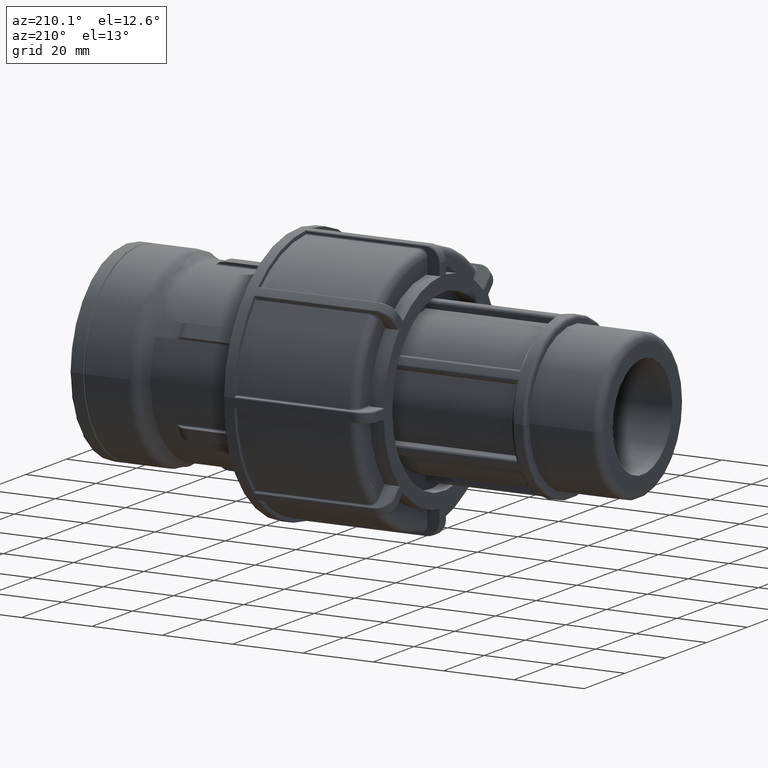
[diagram: clean part render]
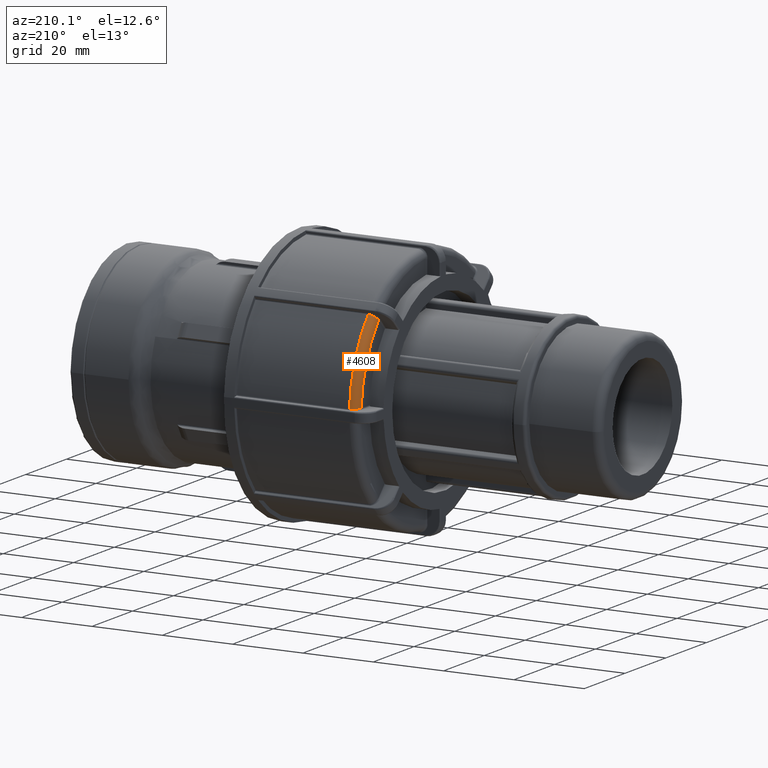
[diagram: same view with one face highlighted and labeled with its STEP entity id]
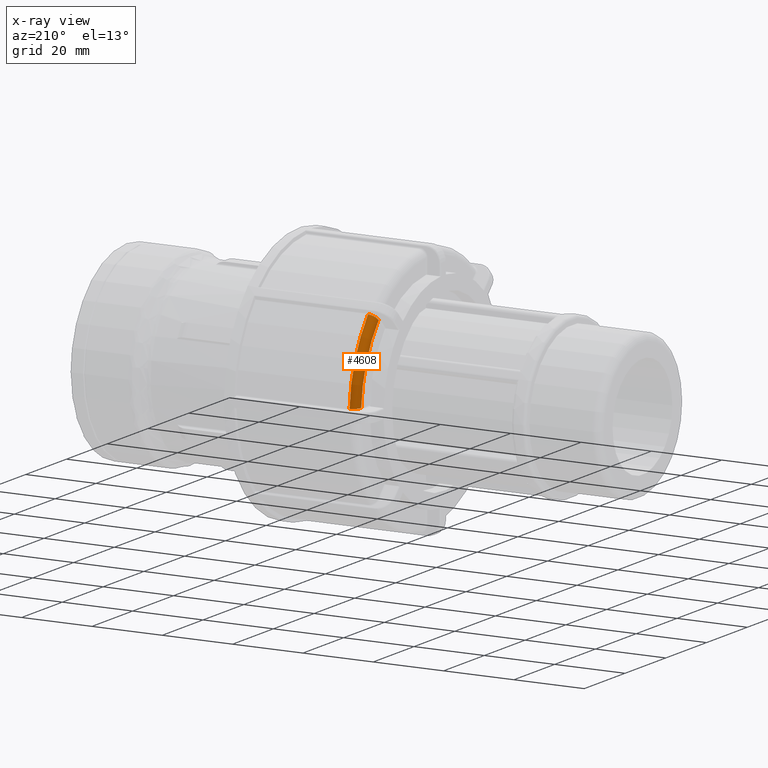
[diagram: x-ray of the same camera — body ghosted, the highlighted face saturated]
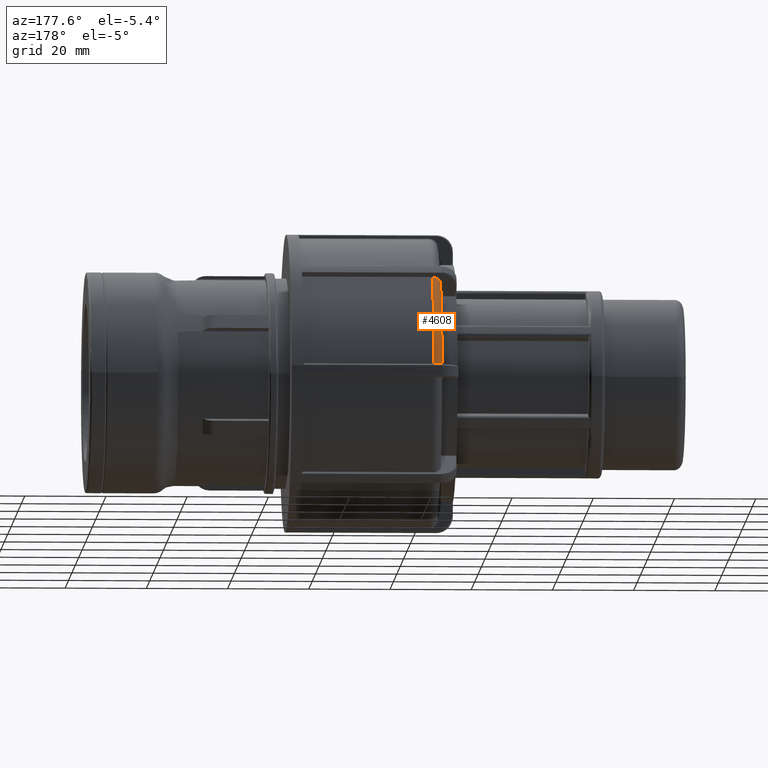
[diagram: same view with one face highlighted and labeled with its STEP entity id]
A machine part, auxiliary view. The second image highlights one B-rep face of the part: STEP entity #4608.
The next image is the same camera in x-ray: the body ghosted, the highlighted face saturated — about 0% of this face is hidden behind the body in this view.
A second angle (auxiliary view) of the same face is appended — the face is thin or edge-on in the first view.
In plain terms, the highlighted toroidal blend (fillet) surface has major radius 33.5035 mm and minor (blend) radius 2.0955 mm.
Its self-contained STEP definition (entity closure, byte-faithful):
#1093=FACE_OUTER_BOUND('',#1379,.T.);
#1379=EDGE_LOOP('',(#4290,#4291,#4292,#4293));
#1542=B_SPLINE_CURVE_WITH_KNOTS('',3,(#9119,#9120,#9121,#9122,#9123),
 .UNSPECIFIED.,.F.,.F.,(4,1,4),(-0.387068200285589,-0.221181828734623,-7.67791619291819E-16),
 .UNSPECIFIED.);
#1553=B_SPLINE_CURVE_WITH_KNOTS('',3,(#9380,#9381,#9382,#9383,#9384),
 .UNSPECIFIED.,.F.,.F.,(4,1,4),(-0.387068333211897,-0.165886428519386,-2.16038670476747E-15),
 .UNSPECIFIED.);
#1803=CIRCLE('',#5092,35.599);
#1804=CIRCLE('',#5094,33.5035);
#2221=VERTEX_POINT('',#9088);
#2223=VERTEX_POINT('',#9117);
#2241=VERTEX_POINT('',#9350);
#2242=VERTEX_POINT('',#9378);
#2857=EDGE_CURVE('',#2223,#2221,#1542,.T.);
#2899=EDGE_CURVE('',#2242,#2241,#1553,.T.);
#2941=EDGE_CURVE('',#2223,#2241,#1803,.T.);
#2942=EDGE_CURVE('',#2242,#2221,#1804,.T.);
#4290=ORIENTED_EDGE('',*,*,#2857,.F.);
#4291=ORIENTED_EDGE('',*,*,#2941,.T.);
#4292=ORIENTED_EDGE('',*,*,#2899,.F.);
#4293=ORIENTED_EDGE('',*,*,#2942,.T.);
#4353=TOROIDAL_SURFACE('',#5093,33.5035,2.0955);
#4608=ADVANCED_FACE('',(#1093),#4353,.T.);
#5092=AXIS2_PLACEMENT_3D('',#9484,#6332,#6333);
#5093=AXIS2_PLACEMENT_3D('',#9485,#6334,#6335);
#5094=AXIS2_PLACEMENT_3D('',#9486,#6336,#6337);
#6332=DIRECTION('center_axis',(-1.,0.,0.));
#6333=DIRECTION('ref_axis',(0.,-1.,1.83697019872103E-16));
#6334=DIRECTION('center_axis',(1.,0.,0.));
#6335=DIRECTION('ref_axis',(0.,0.,-1.));
#6336=DIRECTION('center_axis',(1.,0.,0.));
#6337=DIRECTION('ref_axis',(0.,-1.,1.83697019872103E-16));
#9088=CARTESIAN_POINT('',(-86.405,24.9525328822838,22.3574509953292));
#9117=CARTESIAN_POINT('',(-84.3095,26.4238109106672,23.8552094511305));
#9119=CARTESIAN_POINT('Ctrl Pts',(-84.3095,26.4238109106672,23.8552094511305));
#9120=CARTESIAN_POINT('Ctrl Pts',(-84.7800446925009,26.4238109106672,23.8552094511305));
#9121=CARTESIAN_POINT('Ctrl Pts',(-85.8792670252882,26.1537976221477,23.5807742835533));
#9122=CARTESIAN_POINT('Ctrl Pts',(-86.405,25.3921506514869,22.805566956281));
#9123=CARTESIAN_POINT('Ctrl Pts',(-86.405,24.9525328822838,22.3574509953292));
#9350=CARTESIAN_POINT('',(-84.3095,35.5526362492436,1.81627551020405));
#9378=CARTESIAN_POINT('',(-86.405,33.4532104176878,1.83499999999987));
#9380=CARTESIAN_POINT('Ctrl Pts',(-86.405,33.4532104176893,1.83499999999995));
#9381=CARTESIAN_POINT('Ctrl Pts',(-86.4049999999991,34.0809331737411,1.82899086892292));
#9382=CARTESIAN_POINT('Ctrl Pts',(-85.8793145630074,35.1675969916917,1.81940273075726));
#9383=CARTESIAN_POINT('Ctrl Pts',(-84.7800448540948,35.5526362492436,1.81627551020405));
#9384=CARTESIAN_POINT('Ctrl Pts',(-84.3095,35.5526362492436,1.81627551020405));
#9484=CARTESIAN_POINT('Origin',(-84.3095,0.,0.));
#9485=CARTESIAN_POINT('Origin',(-84.3095,0.,0.));
#9486=CARTESIAN_POINT('Origin',(-86.405,0.,0.));